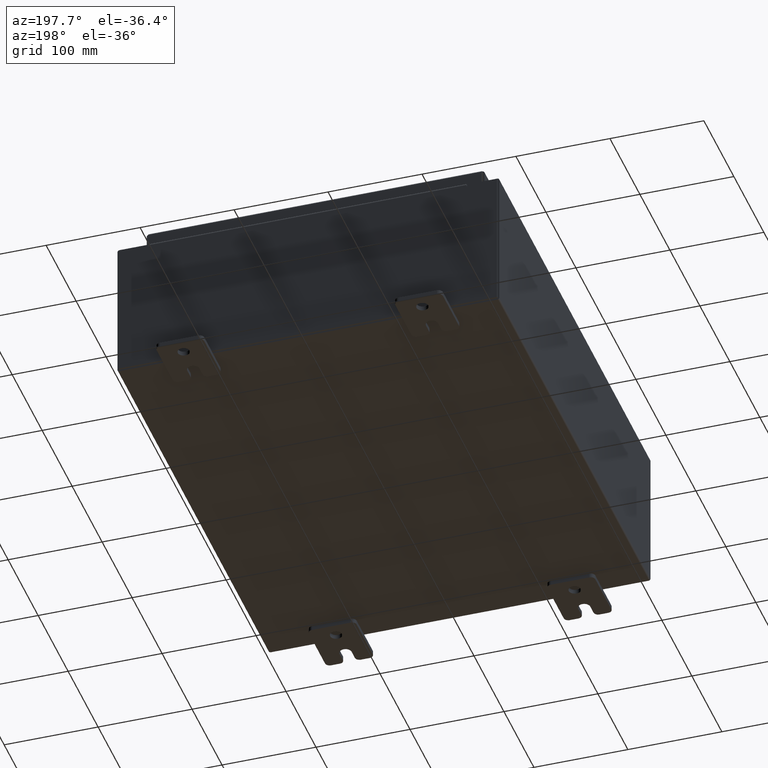
[diagram: clean part render]
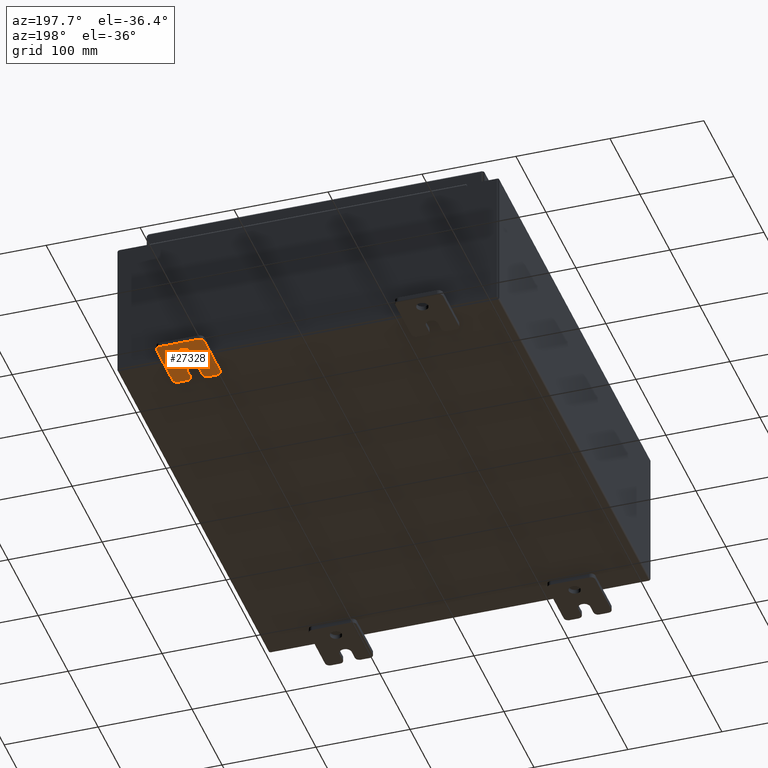
[diagram: same view with one face highlighted and labeled with its STEP entity id]
A machine part, auxiliary view. The second image highlights one B-rep face of the part: STEP entity #27328.
In plain terms, the highlighted planar face has unit normal (0, 0, 1).
Its self-contained STEP definition (entity closure, byte-faithful):
#283 = LINE ( 'NONE', #94536, #87351 ) ;
#533 = DIRECTION ( 'NONE',  ( -1.000000000000000000, -0.0000000000000000000, 0.0000000000000000000 ) ) ;
#1351 = AXIS2_PLACEMENT_3D ( 'NONE', #57379, #6921, #65848 ) ;
#3582 = FACE_OUTER_BOUND ( 'NONE', #46620, .T. ) ;
#4623 = DIRECTION ( 'NONE',  ( 1.000000000000000000, -0.0000000000000000000, -5.163192708025532000E-017 ) ) ;
#5147 = CARTESIAN_POINT ( 'NONE',  ( -0.1879999999999997800, 1.249999999999997600, 0.9999999999999951200 ) ) ;
#5446 = VERTEX_POINT ( 'NONE', #29778 ) ;
#6921 = DIRECTION ( 'NONE',  ( -1.000000000000000000, -0.0000000000000000000, 0.0000000000000000000 ) ) ;
#9111 = CARTESIAN_POINT ( 'NONE',  ( -0.1879999999999997800, -1.250000000000005300, -0.8100000000000047200 ) ) ;
#10218 = EDGE_CURVE ( 'NONE', #82119, #38465, #84852, .T. ) ;
#11126 = EDGE_CURVE ( 'NONE', #25967, #38465, #25353, .T. ) ;
#11377 = ORIENTED_EDGE ( 'NONE', *, *, #54228, .F. ) ;
#14986 = DIRECTION ( 'NONE',  ( 1.000000000000000000, -0.0000000000000000000, -5.163192708025532000E-017 ) ) ;
#15084 = PLANE ( 'NONE',  #37496 ) ;
#16267 = EDGE_CURVE ( 'NONE', #31279, #39275, #85499, .T. ) ;
#17391 = CARTESIAN_POINT ( 'NONE',  ( -0.1879999999999997800, 1.059999999999996500, 0.9999999999999953400 ) ) ;
#17526 = VECTOR ( 'NONE', #73789, 39.37007874015748100 ) ;
#17711 = VERTEX_POINT ( 'NONE', #19104 ) ;
#18933 = DIRECTION ( 'NONE',  ( 6.556435184794182400E-016, 1.000000000000000000, 0.0000000000000000000 ) ) ;
#19104 = CARTESIAN_POINT ( 'NONE',  ( -0.1880000000000001900, -0.6249999999999992200, 0.2500000000000005000 ) ) ;
#19838 = VECTOR ( 'NONE', #46002, 39.37007874015748100 ) ;
#21047 = ORIENTED_EDGE ( 'NONE', *, *, #104029, .F. ) ;
#21609 = EDGE_CURVE ( 'NONE', #61058, #51940, #79425, .T. ) ;
#23242 = EDGE_CURVE ( 'NONE', #5446, #39275, #64669, .T. ) ;
#23251 = CARTESIAN_POINT ( 'NONE',  ( -0.1880000000000001900, -0.6249999999999992200, -0.2499999999999993900 ) ) ;
#23528 = DIRECTION ( 'NONE',  ( 0.0000000000000000000, 1.000000000000000000, -1.639108796198558100E-015 ) ) ;
#23600 = DIRECTION ( 'NONE',  ( -0.0000000000000000000, 0.0000000000000000000, -1.000000000000000000 ) ) ;
#24574 = CIRCLE ( 'NONE', #41290, 0.2499999999999999200 ) ;
#25353 = CIRCLE ( 'NONE', #98241, 0.1900000000000011100 ) ;
#25967 = VERTEX_POINT ( 'NONE', #40502 ) ;
#27328 = ADVANCED_FACE ( 'NONE', ( #70874, #3582 ), #15084, .F. ) ;
#28612 = CARTESIAN_POINT ( 'NONE',  ( -0.1879999999999997800, -1.250000000000002200, 0.9999999999999992200 ) ) ;
#29778 = CARTESIAN_POINT ( 'NONE',  ( -0.1879999999999997800, 1.249999999999994700, -0.8100000000000092700 ) ) ;
#29863 = CIRCLE ( 'NONE', #1351, 0.1900000000000011100 ) ;
#30560 = DIRECTION ( 'NONE',  ( -1.000000000000000000, -0.0000000000000000000, 0.0000000000000000000 ) ) ;
#31279 = VERTEX_POINT ( 'NONE', #17391 ) ;
#32524 = CIRCLE ( 'NONE', #59733, 0.2499999999999999200 ) ;
#33140 = ORIENTED_EDGE ( 'NONE', *, *, #102852, .T. ) ;
#34214 = ORIENTED_EDGE ( 'NONE', *, *, #98821, .T. ) ;
#34442 = LINE ( 'NONE', #28612, #76684 ) ;
#37082 = DIRECTION ( 'NONE',  ( 0.0000000000000000000, -1.639108796198553600E-015, -1.000000000000000000 ) ) ;
#37496 = AXIS2_PLACEMENT_3D ( 'NONE', #99198, #74129, #23600 ) ;
#38465 = VERTEX_POINT ( 'NONE', #45564 ) ;
#39275 = VERTEX_POINT ( 'NONE', #46767 ) ;
#39481 = ORIENTED_EDGE ( 'NONE', *, *, #23242, .F. ) ;
#39783 = CARTESIAN_POINT ( 'NONE',  ( -0.1879999999999997800, -1.060000000000002100, 0.4400000000000016700 ) ) ;
#39959 = DIRECTION ( 'NONE',  ( -1.000000000000000000, 6.523827964459549700E-016, 5.163192708025532000E-017 ) ) ;
#40209 = CARTESIAN_POINT ( 'NONE',  ( -0.1880000000000010000, 0.6249999999999992200, 0.2499999999999999200 ) ) ;
#40216 = LINE ( 'NONE', #56446, #104900 ) ;
#40502 = CARTESIAN_POINT ( 'NONE',  ( -0.1879999999999997800, -1.250000000000004700, -0.4400000000000002200 ) ) ;
#41180 = CARTESIAN_POINT ( 'NONE',  ( -0.1879999999999997800, 1.059999999999993400, -1.000000000000010000 ) ) ;
#41290 = AXIS2_PLACEMENT_3D ( 'NONE', #65512, #14986, #74029 ) ;
#42832 = ORIENTED_EDGE ( 'NONE', *, *, #10218, .F. ) ;
#42928 = DIRECTION ( 'NONE',  ( -1.000000000000000000, -0.0000000000000000000, 0.0000000000000000000 ) ) ;
#44073 = VERTEX_POINT ( 'NONE', #41180 ) ;
#45142 = DIRECTION ( 'NONE',  ( -1.000000000000000000, -0.0000000000000000000, 0.0000000000000000000 ) ) ;
#45564 = CARTESIAN_POINT ( 'NONE',  ( -0.1880000000000004700, -1.060000000000003400, -0.2499999999999994400 ) ) ;
#46002 = DIRECTION ( 'NONE',  ( 0.0000000000000000000, 1.639108796198553600E-015, 1.000000000000000000 ) ) ;
#46620 = EDGE_LOOP ( 'NONE', ( #89159, #33140, #99398, #92129, #39481, #34214, #47432, #85540, #64325, #103677, #42832, #11377, #21047, #46795 ) ) ;
#46767 = CARTESIAN_POINT ( 'NONE',  ( -0.1879999999999997800, 1.249999999999997300, 0.8099999999999935000 ) ) ;
#46795 = ORIENTED_EDGE ( 'NONE', *, *, #21609, .T. ) ;
#47203 = EDGE_CURVE ( 'NONE', #31279, #63539, #75364, .T. ) ;
#47432 = ORIENTED_EDGE ( 'NONE', *, *, #77750, .F. ) ;
#48248 = DIRECTION ( 'NONE',  ( 0.0000000000000000000, 0.0000000000000000000, -1.000000000000000000 ) ) ;
#49567 = CARTESIAN_POINT ( 'NONE',  ( -0.1879999999999997800, -1.250000000000002400, 0.8099999999999980500 ) ) ;
#50198 = VECTOR ( 'NONE', #64081, 39.37007874015748100 ) ;
#50476 = AXIS2_PLACEMENT_3D ( 'NONE', #55049, #4623, #63553 ) ;
#50965 = CARTESIAN_POINT ( 'NONE',  ( -0.1879999999999997800, -1.060000000000001600, 0.8099999999999978300 ) ) ;
#51940 = VERTEX_POINT ( 'NONE', #65403 ) ;
#52538 = CARTESIAN_POINT ( 'NONE',  ( -0.1880000000000010000, 0.6249999999999992200, -0.2499999999999999200 ) ) ;
#53047 = EDGE_CURVE ( 'NONE', #84344, #104524, #24574, .T. ) ;
#53676 = EDGE_CURVE ( 'NONE', #104524, #84344, #61612, .T. ) ;
#54228 = EDGE_CURVE ( 'NONE', #17711, #82119, #32524, .T. ) ;
#55049 = CARTESIAN_POINT ( 'NONE',  ( -0.1880000000000010000, 0.6249999999999992200, -7.703811342100550500E-020 ) ) ;
#55912 = EDGE_CURVE ( 'NONE', #108925, #51940, #40216, .T. ) ;
#56446 = CARTESIAN_POINT ( 'NONE',  ( -0.1879999999999997800, -1.250000000000002200, 0.9999999999999992200 ) ) ;
#57379 = CARTESIAN_POINT ( 'NONE',  ( -0.1879999999999997800, 1.059999999999993600, -0.8100000000000089400 ) ) ;
#59481 = DIRECTION ( 'NONE',  ( 0.0000000000000000000, 7.189073667537492800E-016, -1.000000000000000000 ) ) ;
#59733 = AXIS2_PLACEMENT_3D ( 'NONE', #90503, #39959, #99005 ) ;
#61058 = VERTEX_POINT ( 'NONE', #64423 ) ;
#61217 = AXIS2_PLACEMENT_3D ( 'NONE', #39783, #98825, #48248 ) ;
#61612 = CIRCLE ( 'NONE', #50476, 0.2499999999999999200 ) ;
#63539 = VERTEX_POINT ( 'NONE', #69560 ) ;
#63553 = DIRECTION ( 'NONE',  ( 0.0000000000000000000, 0.0000000000000000000, -1.000000000000000000 ) ) ;
#64081 = DIRECTION ( 'NONE',  ( 0.0000000000000000000, -1.000000000000000000, 1.639108796198558100E-015 ) ) ;
#64325 = ORIENTED_EDGE ( 'NONE', *, *, #105127, .F. ) ;
#64423 = CARTESIAN_POINT ( 'NONE',  ( -0.1880000000000004700, -1.060000000000002100, 0.2500000000000005000 ) ) ;
#64669 = LINE ( 'NONE', #70438, #19838 ) ;
#65403 = CARTESIAN_POINT ( 'NONE',  ( -0.1879999999999997800, -1.250000000000003100, 0.4400000000000020000 ) ) ;
#65512 = CARTESIAN_POINT ( 'NONE',  ( -0.1880000000000010000, 0.6249999999999992200, -7.703811342100550500E-020 ) ) ;
#65848 = DIRECTION ( 'NONE',  ( 0.0000000000000000000, 0.0000000000000000000, -1.000000000000000000 ) ) ;
#66007 = ORIENTED_EDGE ( 'NONE', *, *, #53676, .T. ) ;
#66213 = VECTOR ( 'NONE', #23528, 39.37007874015748100 ) ;
#67374 = AXIS2_PLACEMENT_3D ( 'NONE', #93475, #42928, #101970 ) ;
#68884 = LINE ( 'NONE', #99130, #66213 ) ;
#69339 = AXIS2_PLACEMENT_3D ( 'NONE', #50965, #533, #59481 ) ;
#69560 = CARTESIAN_POINT ( 'NONE',  ( -0.1879999999999997800, -1.060000000000001200, 0.9999999999999988900 ) ) ;
#70438 = CARTESIAN_POINT ( 'NONE',  ( -0.1879999999999997800, 1.249999999999994200, -1.000000000000010400 ) ) ;
#70874 = FACE_BOUND ( 'NONE', #97151, .T. ) ;
#73789 = DIRECTION ( 'NONE',  ( -6.556435184794182400E-016, -1.000000000000000000, -1.639108796198545600E-016 ) ) ;
#74029 = DIRECTION ( 'NONE',  ( 0.0000000000000000000, 0.0000000000000000000, -1.000000000000000000 ) ) ;
#74129 = DIRECTION ( 'NONE',  ( 1.000000000000000000, 0.0000000000000000000, -0.0000000000000000000 ) ) ;
#74229 = CIRCLE ( 'NONE', #84191, 0.1900000000000011100 ) ;
#75364 = LINE ( 'NONE', #5147, #50198 ) ;
#76283 = VERTEX_POINT ( 'NONE', #9111 ) ;
#76684 = VECTOR ( 'NONE', #37082, 39.37007874015748100 ) ;
#77750 = EDGE_CURVE ( 'NONE', #88716, #44073, #68884, .T. ) ;
#79425 = CIRCLE ( 'NONE', #61217, 0.1900000000000011400 ) ;
#81088 = CARTESIAN_POINT ( 'NONE',  ( -0.1879999999999997800, -1.060000000000003400, -0.4400000000000005000 ) ) ;
#82119 = VERTEX_POINT ( 'NONE', #90027 ) ;
#84191 = AXIS2_PLACEMENT_3D ( 'NONE', #95699, #45142, #104182 ) ;
#84344 = VERTEX_POINT ( 'NONE', #52538 ) ;
#84852 = LINE ( 'NONE', #23251, #17526 ) ;
#85499 = CIRCLE ( 'NONE', #67374, 0.1900000000000011100 ) ;
#85540 = ORIENTED_EDGE ( 'NONE', *, *, #103359, .T. ) ;
#87351 = VECTOR ( 'NONE', #18933, 39.37007874015748100 ) ;
#88716 = VERTEX_POINT ( 'NONE', #92882 ) ;
#89159 = ORIENTED_EDGE ( 'NONE', *, *, #55912, .F. ) ;
#89540 = DIRECTION ( 'NONE',  ( 0.0000000000000000000, 0.0000000000000000000, -1.000000000000000000 ) ) ;
#90027 = CARTESIAN_POINT ( 'NONE',  ( -0.1880000000000001900, -0.6249999999999992200, -0.2499999999999998600 ) ) ;
#90038 = DIRECTION ( 'NONE',  ( 0.0000000000000000000, -1.639108796198553600E-015, -1.000000000000000000 ) ) ;
#90503 = CARTESIAN_POINT ( 'NONE',  ( -0.1880000000000001900, -0.6249999999999992200, 6.829619984160658000E-017 ) ) ;
#92129 = ORIENTED_EDGE ( 'NONE', *, *, #16267, .T. ) ;
#92882 = CARTESIAN_POINT ( 'NONE',  ( -0.1879999999999997800, -1.060000000000004500, -1.000000000000006400 ) ) ;
#93475 = CARTESIAN_POINT ( 'NONE',  ( -0.1879999999999997800, 1.059999999999996300, 0.8099999999999938400 ) ) ;
#94536 = CARTESIAN_POINT ( 'NONE',  ( -0.1880000000000005800, -1.250000000000003800, 0.2500000000000005000 ) ) ;
#95388 = CIRCLE ( 'NONE', #69339, 0.1900000000000011100 ) ;
#95699 = CARTESIAN_POINT ( 'NONE',  ( -0.1879999999999997800, -1.060000000000004100, -0.8100000000000050500 ) ) ;
#97151 = EDGE_LOOP ( 'NONE', ( #98572, #66007 ) ) ;
#98241 = AXIS2_PLACEMENT_3D ( 'NONE', #81088, #30560, #89540 ) ;
#98572 = ORIENTED_EDGE ( 'NONE', *, *, #53047, .T. ) ;
#98821 = EDGE_CURVE ( 'NONE', #5446, #44073, #29863, .T. ) ;
#98825 = DIRECTION ( 'NONE',  ( -1.000000000000000000, -0.0000000000000000000, 0.0000000000000000000 ) ) ;
#99005 = DIRECTION ( 'NONE',  ( -6.829619984160660000E-016, -1.000000000000000000, 0.0000000000000000000 ) ) ;
#99130 = CARTESIAN_POINT ( 'NONE',  ( -0.1879999999999997800, -1.250000000000005600, -1.000000000000006200 ) ) ;
#99198 = CARTESIAN_POINT ( 'NONE',  ( -0.1879999999999997800, 0.0000000000000000000, 0.0000000000000000000 ) ) ;
#99398 = ORIENTED_EDGE ( 'NONE', *, *, #47203, .F. ) ;
#101970 = DIRECTION ( 'NONE',  ( 0.0000000000000000000, 0.0000000000000000000, -1.000000000000000000 ) ) ;
#102852 = EDGE_CURVE ( 'NONE', #108925, #63539, #95388, .T. ) ;
#103359 = EDGE_CURVE ( 'NONE', #88716, #76283, #74229, .T. ) ;
#103677 = ORIENTED_EDGE ( 'NONE', *, *, #11126, .T. ) ;
#104029 = EDGE_CURVE ( 'NONE', #61058, #17711, #283, .T. ) ;
#104182 = DIRECTION ( 'NONE',  ( 0.0000000000000000000, 0.0000000000000000000, -1.000000000000000000 ) ) ;
#104524 = VERTEX_POINT ( 'NONE', #40209 ) ;
#104900 = VECTOR ( 'NONE', #90038, 39.37007874015748100 ) ;
#105127 = EDGE_CURVE ( 'NONE', #25967, #76283, #34442, .T. ) ;
#108925 = VERTEX_POINT ( 'NONE', #49567 ) ;